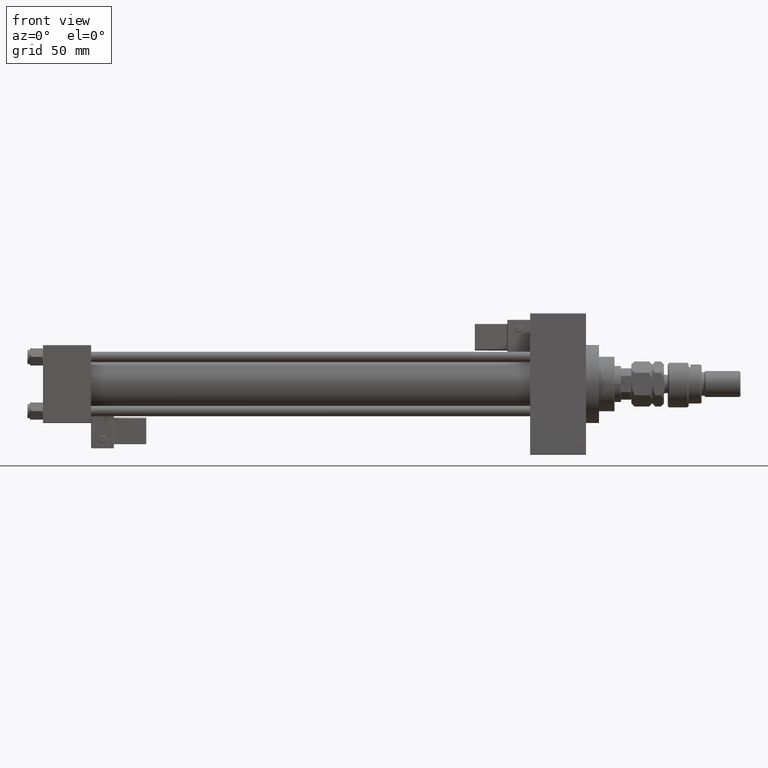
[diagram: clean part render]
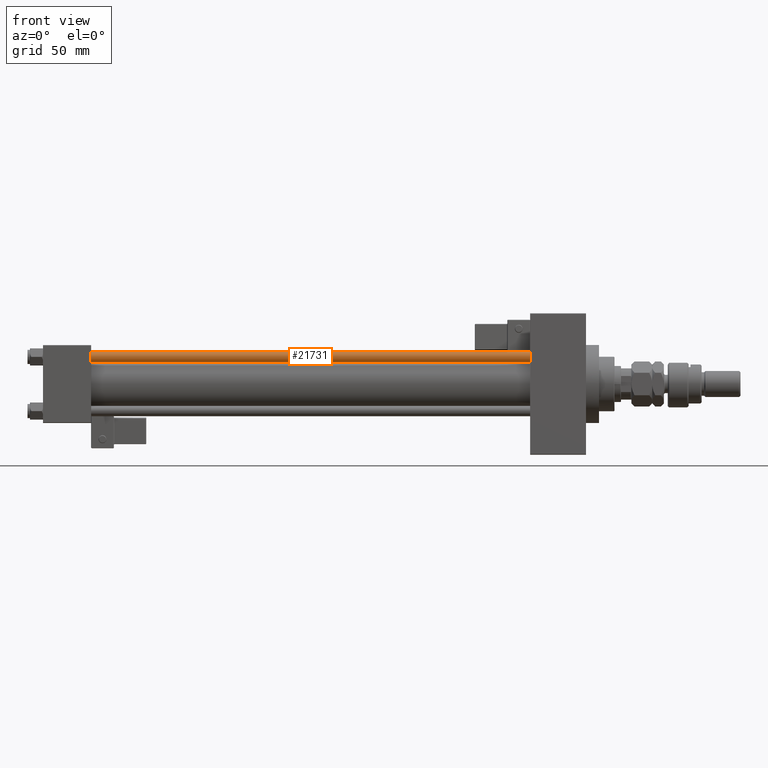
[diagram: same view with one face highlighted and labeled with its STEP entity id]
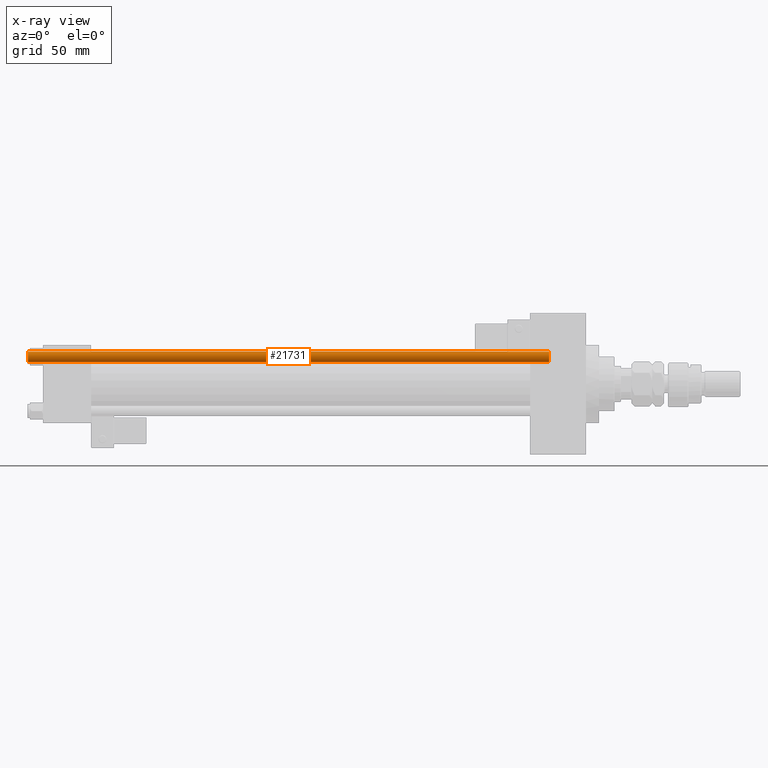
[diagram: x-ray of the same camera — body ghosted, the highlighted face saturated]
A machine part, front view. The second image highlights one B-rep face of the part: STEP entity #21731.
The next image is the same camera in x-ray: the body ghosted, the highlighted face saturated — about 0% of this face is hidden behind the body in this view.
In plain terms, the highlighted cylindrical surface (edge-blend (fillet) strip) has radius 4 mm, axis along (1, 0, 0).
Its self-contained STEP definition (entity closure, byte-faithful):
#1372 = ORIENTED_EDGE ( 'NONE', *, *, #13542, .T. ) ;
#2932 = EDGE_CURVE ( 'NONE', #40141, #21712, #42409, .T. ) ;
#2963 = VERTEX_POINT ( 'NONE', #39490 ) ;
#6939 = DIRECTION ( 'NONE',  ( -0.000000000000000000, -0.000000000000000000, 1.000000000000000000 ) ) ;
#7219 = CIRCLE ( 'NONE', #12304, 4.000000000000000000 ) ;
#7891 = CARTESIAN_POINT ( 'NONE',  ( -4.000000000000000000, 0.000000000000000000, 402.0000000000000000 ) ) ;
#8928 = VERTEX_POINT ( 'NONE', #51346 ) ;
#11717 = CARTESIAN_POINT ( 'NONE',  ( 0.000000000000000000, 0.000000000000000000, 0.5000000000000004441 ) ) ;
#12304 = AXIS2_PLACEMENT_3D ( 'NONE', #11717, #6939, #23167 ) ;
#12484 = CARTESIAN_POINT ( 'NONE',  ( 4.000000000000000000, 4.898587196589412829E-16, 0.5000000000000004441 ) ) ;
#12833 = ORIENTED_EDGE ( 'NONE', *, *, #51434, .F. ) ;
#13521 = CARTESIAN_POINT ( 'NONE',  ( 0.000000000000000000, 0.000000000000000000, 402.0000000000000000 ) ) ;
#13542 = EDGE_CURVE ( 'NONE', #21712, #8928, #7219, .T. ) ;
#13989 = DIRECTION ( 'NONE',  ( 1.000000000000000000, 0.000000000000000000, 0.000000000000000000 ) ) ;
#16949 = DIRECTION ( 'NONE',  ( 0.000000000000000000, 0.000000000000000000, -1.000000000000000000 ) ) ;
#18112 = CIRCLE ( 'NONE', #41067, 4.000000000000000000 ) ;
#21263 = DIRECTION ( 'NONE',  ( -0.000000000000000000, -0.000000000000000000, -1.000000000000000000 ) ) ;
#21712 = VERTEX_POINT ( 'NONE', #12484 ) ;
#21731 = ADVANCED_FACE ( 'NONE', ( #37461 ), #29746, .T. ) ;
#22242 = CARTESIAN_POINT ( 'NONE',  ( 4.000000000000000000, 4.898587196589412829E-16, 401.5000000000000568 ) ) ;
#23167 = DIRECTION ( 'NONE',  ( 1.000000000000000000, 0.000000000000000000, 0.000000000000000000 ) ) ;
#24115 = DIRECTION ( 'NONE',  ( -0.000000000000000000, -0.000000000000000000, -1.000000000000000000 ) ) ;
#26993 = CARTESIAN_POINT ( 'NONE',  ( 4.000000000000000000, 4.898587196589412829E-16, 402.0000000000000000 ) ) ;
#29579 = ORIENTED_EDGE ( 'NONE', *, *, #2932, .T. ) ;
#29746 = CYLINDRICAL_SURFACE ( 'NONE', #35529, 4.000000000000000000 ) ;
#31829 = LINE ( 'NONE', #7891, #37677 ) ;
#33421 = CARTESIAN_POINT ( 'NONE',  ( 0.000000000000000000, 0.000000000000000000, 401.5000000000000568 ) ) ;
#35529 = AXIS2_PLACEMENT_3D ( 'NONE', #13521, #21263, #37200 ) ;
#37200 = DIRECTION ( 'NONE',  ( -1.000000000000000000, 0.000000000000000000, 0.000000000000000000 ) ) ;
#37461 = FACE_OUTER_BOUND ( 'NONE', #49305, .T. ) ;
#37677 = VECTOR ( 'NONE', #24115, 1000.000000000000000 ) ;
#38157 = DIRECTION ( 'NONE',  ( -0.000000000000000000, -0.000000000000000000, -1.000000000000000000 ) ) ;
#38180 = VECTOR ( 'NONE', #38157, 1000.000000000000000 ) ;
#38566 = ORIENTED_EDGE ( 'NONE', *, *, #43094, .T. ) ;
#39490 = CARTESIAN_POINT ( 'NONE',  ( -4.000000000000000000, 0.000000000000000000, 401.5000000000000568 ) ) ;
#40141 = VERTEX_POINT ( 'NONE', #22242 ) ;
#41067 = AXIS2_PLACEMENT_3D ( 'NONE', #33421, #16949, #13989 ) ;
#42409 = LINE ( 'NONE', #26993, #38180 ) ;
#43094 = EDGE_CURVE ( 'NONE', #2963, #40141, #18112, .T. ) ;
#49305 = EDGE_LOOP ( 'NONE', ( #38566, #29579, #1372, #12833 ) ) ;
#51346 = CARTESIAN_POINT ( 'NONE',  ( -4.000000000000000000, 0.000000000000000000, 0.5000000000000004441 ) ) ;
#51434 = EDGE_CURVE ( 'NONE', #2963, #8928, #31829, .T. ) ;